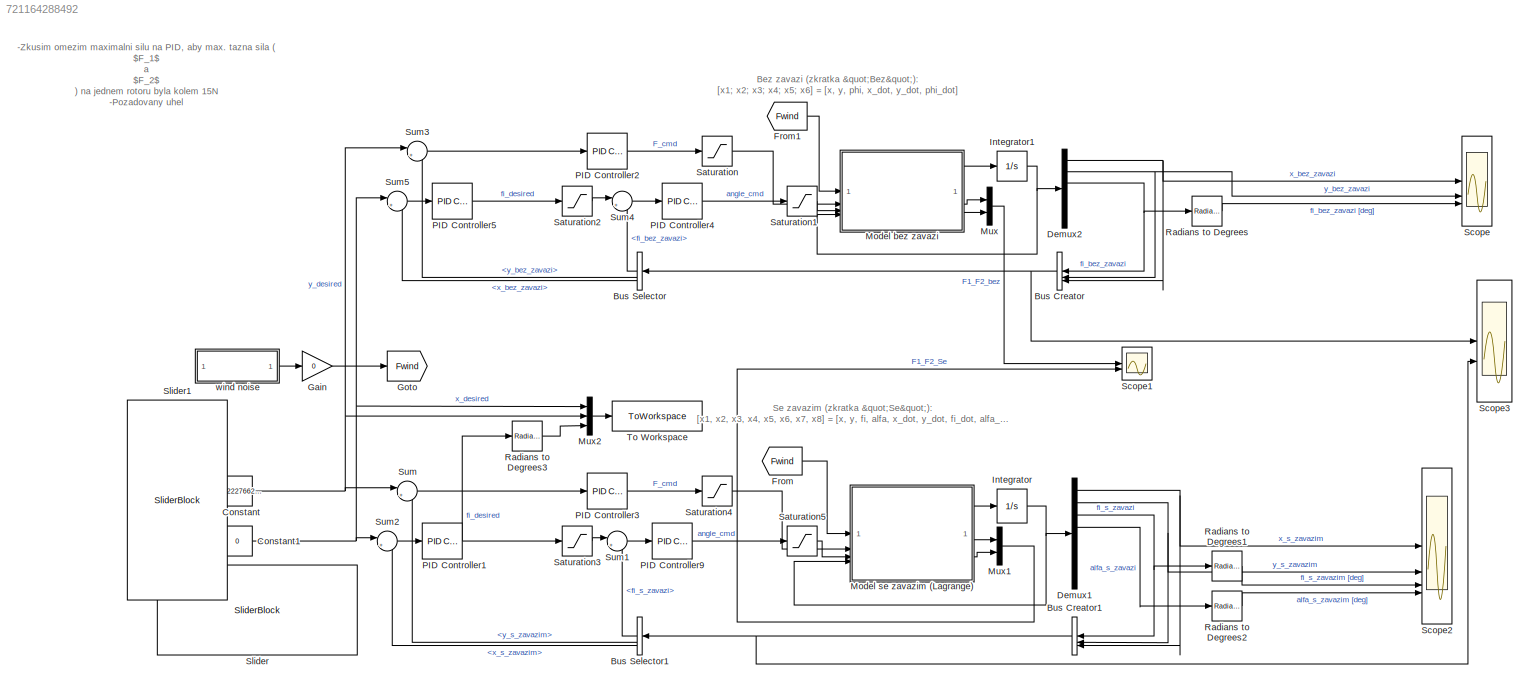
MODEL slx_721164288492
KIND model
CONFIG AbsTol = auto
CONFIG EnableMultiTasking = off
CONFIG FixedStep = 1e-3
CONFIG MaxStep = auto
CONFIG MinStep = auto
CONFIG RelTol = 1e-3
CONFIG SampleTimeConstraint = Unconstrained
CONFIG SolverName = ode4
CONFIG StartTime = 0.0
CONFIG StopTime = 30
BLOCK [BusCreator] Bus Creator
  DisplayOption = bar
  InheritFromInputs = on
  Inputs = 3
BLOCK [BusCreator] Bus Creator1
  DisplayOption = bar
  InheritFromInputs = on
  Inputs = 3
BLOCK [BusSelector] Bus Selector
  OutputSignals = fi_bez_zavazi,y_bez_zavazi,x_bez_zavazi
BLOCK [BusSelector] Bus Selector1
  OutputSignals = fi_s_zavazi,y_s_zavazim,x_s_zavazim
BLOCK [Constant] Constant
  Value = 1.542227662178703
BLOCK [Constant] Constant1
  Value = 0
BLOCK [Demux] Demux1
  Outputs = 8
BLOCK [Demux] Demux2
  Outputs = 6
BLOCK [From] From
  GotoTag = Fwind
BLOCK [From] From1
  GotoTag = Fwind
BLOCK [Gain] Gain
  Gain = 0
BLOCK [Goto] Goto
  GotoTag = Fwind
BLOCK [Integrator] Integrator
  IgnoreLimit = on
  InitialCondition = [0;0;0;0;0;0;0;0]
  LowerSaturationLimit = [-inf; -inf; -inf; -pi; -inf; -inf; -inf; -inf]
  UpperSaturationLimit = [inf; inf; inf; pi; inf; inf; inf; inf]
BLOCK [Integrator] Integrator1
  InitialCondition = [0;0;0;0;0;0]
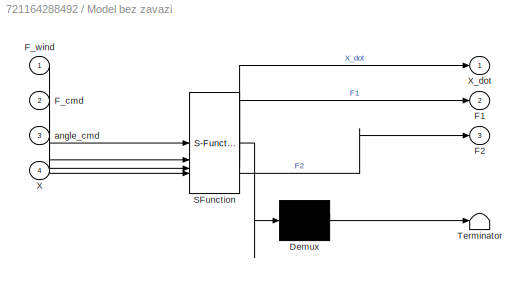
BLOCK [SubSystem] Model bez zavazi
  ErrorFcn = Stateflow.Translate.translate
  LibrarySourceBlock = simulink/User-Defined\nFunctions/MATLAB Function
  PermitHierarchicalResolution = ExplicitOnly
  SFBlockType = MATLAB Function
  TreatAsAtomicUnit = on
BLOCK [Demux] Model bez zavazi/ Demux 
  Outputs = 1
BLOCK [S-Function] Model bez zavazi/ SFunction 
  EnableBusSupport = on
  FunctionName = sf_sfun
  Parameters = Ikv,L,M,c_fi,c_x,c_y,g
  PortCounts = [4 4]
  SFcnIsStateOwnerBlock = off
  SFunctionDeploymentMode = off
  Tag = Stateflow S-Function 1
BLOCK [Terminator] Model bez zavazi/ Terminator 
BLOCK [Outport] Model bez zavazi/F1
  Port = 2
BLOCK [Outport] Model bez zavazi/F2
  Port = 3
BLOCK [Inport] Model bez zavazi/F_cmd
  Port = 2
BLOCK [Inport] Model bez zavazi/F_wind
BLOCK [Inport] Model bez zavazi/X
  Port = 4
BLOCK [Outport] Model bez zavazi/X_dot
BLOCK [Inport] Model bez zavazi/angle_cmd
  Port = 3
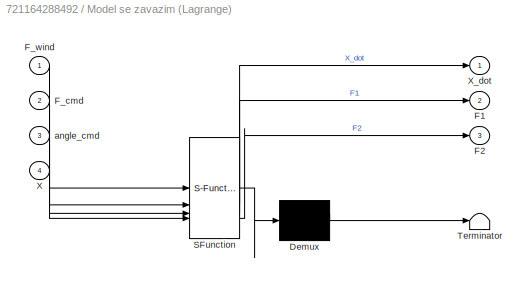
BLOCK [SubSystem] Model se zavazim (Lagrange)
  ErrorFcn = Stateflow.Translate.translate
  LibrarySourceBlock = simulink/User-Defined\nFunctions/MATLAB Function
  PermitHierarchicalResolution = ExplicitOnly
  SFBlockType = MATLAB Function
  TreatAsAtomicUnit = on
BLOCK [Demux] Model se zavazim (Lagrange)/ Demux 
  Outputs = 1
BLOCK [S-Function] Model se zavazim (Lagrange)/ SFunction 
  EnableBusSupport = on
  FunctionName = sf_sfun
  Parameters = Ikv,L,M,c_alfa,c_fi,c_x,c_y,d,g,m
  PortCounts = [4 4]
  SFcnIsStateOwnerBlock = off
  SFunctionDeploymentMode = off
  Tag = Stateflow S-Function 3
BLOCK [Terminator] Model se zavazim (Lagrange)/ Terminator 
BLOCK [Outport] Model se zavazim (Lagrange)/F1
  Port = 2
BLOCK [Outport] Model se zavazim (Lagrange)/F2
  Port = 3
BLOCK [Inport] Model se zavazim (Lagrange)/F_cmd
  Port = 2
BLOCK [Inport] Model se zavazim (Lagrange)/F_wind
BLOCK [Inport] Model se zavazim (Lagrange)/X
  Port = 4
BLOCK [Outport] Model se zavazim (Lagrange)/X_dot
BLOCK [Inport] Model se zavazim (Lagrange)/angle_cmd
  Port = 3
BLOCK [Mux] Mux
  DisplayOption = bar
  Inputs = 2
BLOCK [Mux] Mux1
  DisplayOption = bar
  Inputs = 2
BLOCK [Mux] Mux2
  DisplayOption = bar
  Inputs = 3
BLOCK [Reference] PID Controller1  REF=slpidlib/PID Controller
  LibrarySourceBlock = simulink/Continuous/PID Controller
  SourceBlock = slpidlib/PID Controller
  SourceType = PID 1dof
BLOCK [Reference] PID Controller2  REF=slpidlib/PID Controller
  LibrarySourceBlock = simulink/Continuous/PID Controller
  SourceBlock = slpidlib/PID Controller
  SourceType = PID 1dof
BLOCK [Reference] PID Controller3  REF=slpidlib/PID Controller
  LibrarySourceBlock = simulink/Continuous/PID Controller
  SourceBlock = slpidlib/PID Controller
  SourceType = PID 1dof
BLOCK [Reference] PID Controller4  REF=slpidlib/PID Controller
  LibrarySourceBlock = simulink/Continuous/PID Controller
  SourceBlock = slpidlib/PID Controller
  SourceType = PID 1dof
BLOCK [Reference] PID Controller5  REF=slpidlib/PID Controller
  LibrarySourceBlock = simulink/Continuous/PID Controller
  SourceBlock = slpidlib/PID Controller
  SourceType = PID 1dof
BLOCK [Reference] PID Controller9  REF=slpidlib/PID Controller
  LibrarySourceBlock = simulink/Continuous/PID Controller
  SourceBlock = slpidlib/PID Controller
  SourceType = PID 1dof
BLOCK [Reference] Radians to Degrees  REF=simulink_extras/Transformations/Radians
to Degrees
  SourceBlock = simulink_extras/Transformations/Radians\nto Degrees
  SourceType = RadiansToDegrees
BLOCK [Reference] Radians to Degrees1  REF=simulink_extras/Transformations/Radians
to Degrees
  SourceBlock = simulink_extras/Transformations/Radians\nto Degrees
  SourceType = RadiansToDegrees
BLOCK [Reference] Radians to Degrees2  REF=simulink_extras/Transformations/Radians
to Degrees
  SourceBlock = simulink_extras/Transformations/Radians\nto Degrees
  SourceType = RadiansToDegrees
BLOCK [Reference] Radians to Degrees3  REF=simulink_extras/Transformations/Radians
to Degrees
  SourceBlock = simulink_extras/Transformations/Radians\nto Degrees
  SourceType = RadiansToDegrees
BLOCK [Saturate] Saturation
  LowerLimit = 0
  UpperLimit = 15
BLOCK [Saturate] Saturation1
  LowerLimit = -15
  UpperLimit = 15
BLOCK [Saturate] Saturation2
  LowerLimit = -pi/2
  UpperLimit = pi/2
BLOCK [Saturate] Saturation3
  LowerLimit = -pi/2
  UpperLimit = pi/2
BLOCK [Saturate] Saturation4
  LowerLimit = 0
  UpperLimit = 15
BLOCK [Saturate] Saturation5
  LowerLimit = -15
  UpperLimit = 15
BLOCK [Scope] Scope
  Floating = off
  NumInputPorts = 3
  ScopeSpecificationString = Simulink.scopes.TimeScopeBlockCfg('CurrentConfiguration', extmgr.ConfigurationSet(extmgr.Configuration('Core','General UI',true),extmgr.Configuration('Core','Source UI',true),extmgr.Configuration('Sources','WiredSimulink',true,'DataLoggingVariableName','Bez_zavazi','DataLogging',true,'DataLoggingSaveFormat','Structure'),extmgr.Configuration('Visuals','Time Domain',true,'SerializedDisplays',{struct...<+2778ch>
BLOCK [Scope] Scope1
  Floating = off
  NumInputPorts = 2
  ScopeSpecificationString = Simulink.scopes.TimeScopeBlockCfg('CurrentConfiguration', extmgr.ConfigurationSet(extmgr.Configuration('Core','General UI',true),extmgr.Configuration('Core','Source UI',true),extmgr.Configuration('Sources','WiredSimulink',true,'DataLoggingVariableName','F1_F2','DataLogging',true,'DataLoggingSaveFormat','Structure'),extmgr.Configuration('Visuals','Time Domain',true,'SerializedDisplays',{struct('Min...<+2094ch>
BLOCK [Scope] Scope2
  Floating = off
  NumInputPorts = 4
  ScopeSpecificationString = Simulink.scopes.TimeScopeBlockCfg('CurrentConfiguration', extmgr.ConfigurationSet(extmgr.Configuration('Core','General UI',true),extmgr.Configuration('Core','Source UI',true),extmgr.Configuration('Sources','WiredSimulink',true,'DataLoggingVariableName','Se_zavazim','DataLogging',true,'DataLoggingSaveFormat','Structure'),extmgr.Configuration('Visuals','Time Domain',true,'SerializedDisplays',{struct...<+3503ch>
BLOCK [Scope] Scope3
  Floating = off
  NumInputPorts = 2
  ScopeSpecificationString = Simulink.scopes.TimeScopeBlockCfg('CurrentConfiguration', extmgr.ConfigurationSet(extmgr.Configuration('Core','General UI',true),extmgr.Configuration('Core','Source UI',true),extmgr.Configuration('Sources','WiredSimulink',true,'DataLoggingVariableName','ScopeData3'),extmgr.Configuration('Visuals','Time Domain',true,'SerializedDisplays',{struct('MinYLimReal','-11.44386','MaxYLimReal','10.4149','YLa...<+2320ch>
BLOCK [SliderBlock] Slider
  ScaleMax = 5
  ScaleMin = -5
BLOCK [SliderBlock] Slider1
  NameLocation = right
  ScaleMax = 5
  ScaleMin = -5
BLOCK [Sum] Sum
  Inputs = |+-
BLOCK [Sum] Sum1
  Inputs = |+-
BLOCK [Sum] Sum2
  Inputs = |+-
BLOCK [Sum] Sum3
  Inputs = |+-
BLOCK [Sum] Sum4
  Inputs = |+-
BLOCK [Sum] Sum5
  Inputs = |+-
BLOCK [ToWorkspace] To Workspace
  FixptAsFi = on
  MaxDataPoints = inf
  SampleTime = 1e-3
  SaveFormat = Structure
  VariableName = x_y_fi_desired
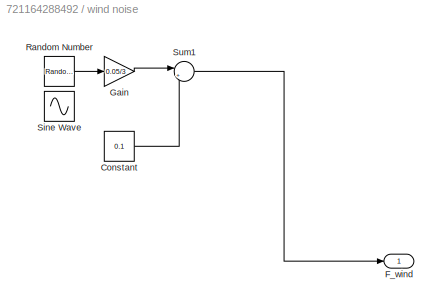
BLOCK [SubSystem] wind noise
BLOCK [Constant] wind noise/Constant
  Value = 0.1
BLOCK [Outport] wind noise/F_wind
BLOCK [Gain] wind noise/Gain
  Gain = 0.05/3
BLOCK [RandomNumber] wind noise/Random Number
  SampleTime = 0.1
BLOCK [Sin] wind noise/Sine Wave
  Amplitude = 0.1
  Frequency = 0.5
  SampleTime = 0
BLOCK [Sum] wind noise/Sum1
  Inputs = |++
ANNOTATION (root): Se zavazim (zkratka "Se"): [x1, x2, x3, x4, x5, x6, x7, x8] = [x, y, fi, alfa, x_dot, y_dot, fi_dot, alfa_dot]
ANNOTATION (root): Bez zavazi (zkratka "Bez"): [x1; x2; x3; x4; x5; x6] = [x, y, phi, x_dot, y_dot, phi_dot]
ANNOTATION (root): -Zkusim omezim maximalni silu na PID, aby max. tazna sila ( $F_1$ a $F_2$ ) na jednem rotoru byla kolem 15N -Pozadovany uhel $phi_{desired}$ je omezen na $±pi/2$
NET Bus Creator1:1 -> Bus Selector1:1, Scope3:2
NET Bus Creator:1 -> Bus Selector:1, Scope3:1
LINE Bus Selector1:1 -> Sum1:2
LINE Bus Selector1:2 -> Sum:2
LINE Bus Selector1:3 -> Sum2:2
LINE Bus Selector:1 -> Sum4:2
LINE Bus Selector:2 -> Sum3:2
LINE Bus Selector:3 -> Sum5:2
NET Constant1:1 -> Mux2:1, Sum2:1, Sum5:1
NET Constant:1 -> Mux2:2, Sum3:1, Sum:1
NET Demux1:1 -> Bus Creator1:3, Scope2:1
NET Demux1:2 -> Bus Creator1:2, Scope2:2
NET Demux1:3 -> Bus Creator1:1, Radians to Degrees1:1
LINE Demux1:4 -> Radians to Degrees2:1
NET Demux2:1 -> Bus Creator:3, Scope:1
NET Demux2:2 -> Bus Creator:2, Scope:2
NET Demux2:3 -> Bus Creator:1, Radians to Degrees:1
LINE From1:1 -> Model bez zavazi:1
LINE From:1 -> Model se zavazim (Lagrange):1
LINE Gain:1 -> Goto:1
NET Integrator1:1 -> Demux2:1, Model bez zavazi:4
NET Integrator:1 -> Demux1:1, Model se zavazim (Lagrange):4
LINE Model bez zavazi:1 -> Integrator1:1
LINE Model bez zavazi:2 -> Mux:1
LINE Model bez zavazi:3 -> Mux:2
LINE Model se zavazim (Lagrange):1 -> Integrator:1
LINE Model se zavazim (Lagrange):2 -> Mux1:1
LINE Model se zavazim (Lagrange):3 -> Mux1:2
LINE Mux1:1 -> Scope1:2
LINE Mux2:1 -> To Workspace:1
LINE Mux:1 -> Scope1:1
NET PID Controller1:1 -> Radians to Degrees3:1, Saturation3:1
LINE PID Controller2:1 -> Saturation:1
LINE PID Controller3:1 -> Saturation4:1
LINE PID Controller4:1 -> Saturation1:1
LINE PID Controller5:1 -> Saturation2:1
LINE PID Controller9:1 -> Saturation5:1
LINE Radians to Degrees1:1 -> Scope2:3
LINE Radians to Degrees2:1 -> Scope2:4
LINE Radians to Degrees3:1 -> Mux2:3
LINE Radians to Degrees:1 -> Scope:3
LINE Saturation1:1 -> Model bez zavazi:3
LINE Saturation2:1 -> Sum4:1
LINE Saturation3:1 -> Sum1:1
LINE Saturation4:1 -> Model se zavazim (Lagrange):2
LINE Saturation5:1 -> Model se zavazim (Lagrange):3
LINE Saturation:1 -> Model bez zavazi:2
LINE Sum1:1 -> PID Controller9:1
LINE Sum2:1 -> PID Controller1:1
LINE Sum3:1 -> PID Controller2:1
LINE Sum4:1 -> PID Controller4:1
LINE Sum5:1 -> PID Controller5:1
LINE Sum:1 -> PID Controller3:1
LINE wind noise/Constant:1 -> wind noise/Sum1:2
LINE wind noise/Gain:1 -> wind noise/Sum1:1
LINE wind noise/Random Number:1 -> wind noise/Gain:1
LINE wind noise/Sum1:1 -> wind noise/F_wind:1
LINE wind noise:1 -> Gain:1
note: NET lines group one-source signal fan-out (src -> all destinations, sorted); 1:1 wires keep LINE
CHART Model bez zavazi states=1 transitions=1
  STATE_LABEL 'eML_blk_kernel()'
  STATE_LABEL 'SCRIPT:\nfunction [X_dot, F1, F2] = fcn(F_wind, F_cmd, angle_cmd, X, g, L, M, Ikv, c_x, c_y, c_fi)\n% Dle https://cookierobotics.com/052/\n% [x1; x2; x3; x4; x5; x6] = [x, y, phi, x_dot, y_dot, phi_dot]\nx1 = X(1);\nx2 = X(2);\nx3 = X(3);\nx4 = X(4);\nx5 = X(5);\nx6 = X(6);\n\nF1 = F_cmd + angle_cmd; % Celková tažná síla na 1. motoru\nF2 = F_cmd - angle_cmd; % Celková tažná síla na 2. motoru\n\n% Navíc jsem při...<+259ch>'
CHART Model se zavazim (Lagrange) states=1 transitions=1
  STATE_LABEL 'eML_blk_kernel()'
  STATE_LABEL 'SCRIPT:\nfunction [X_dot, F1, F2] = fcn(F_wind, F_cmd, angle_cmd, X, g, L, d, M, m, Ikv, c_x, c_y, c_fi, c_alfa)\n% [x1, x2, x3, x4, x5, x6, x7, x8] = [x, y, fi, alfa, x_dot, y_dot, fi_dot, alfa_dot]\nx1 = X(1);\nx2 = X(2);\nx3 = X(3);\nx4 = X(4);\nx5 = X(5);\nx6 = X(6);\nx7 = X(7);\nx8 = X(8);\n\nF1 = F_cmd + angle_cmd; % Celková tažná síla na 1. motoru\nF2 = F_cmd - angle_cmd; % Celková tažná síla na 2. moto...<+1515ch>'
CHART  states=0 transitions=0
CHART  states=0 transitions=0
